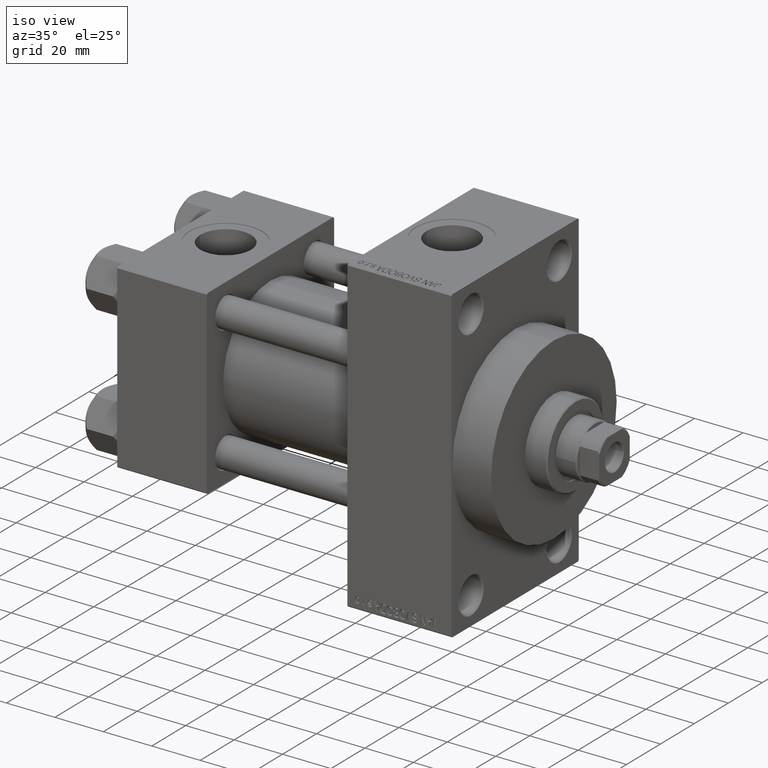
[diagram: clean part render]
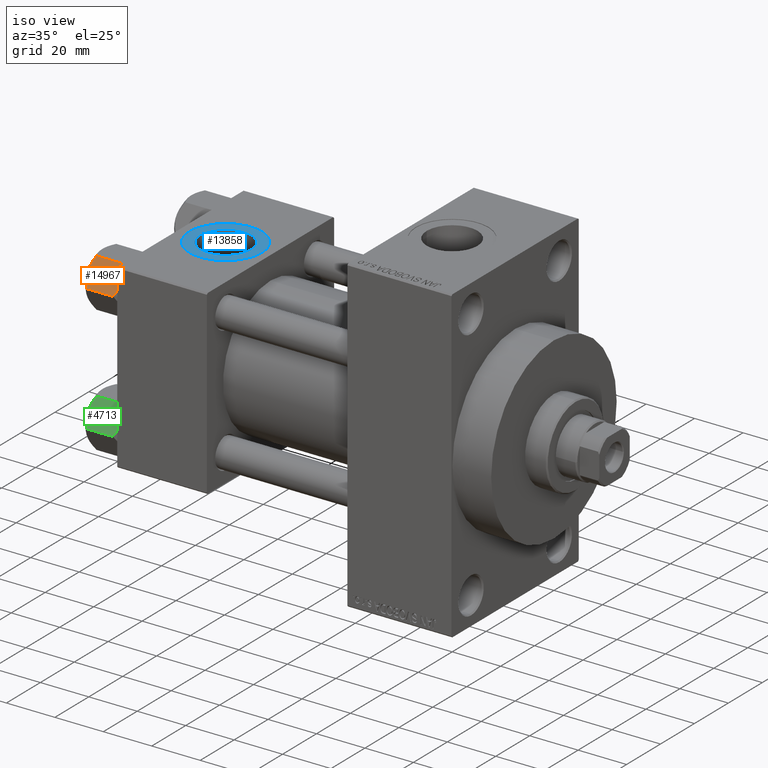
[diagram: same view with three faces highlighted in distinct colors, each labeled with its STEP entity id]
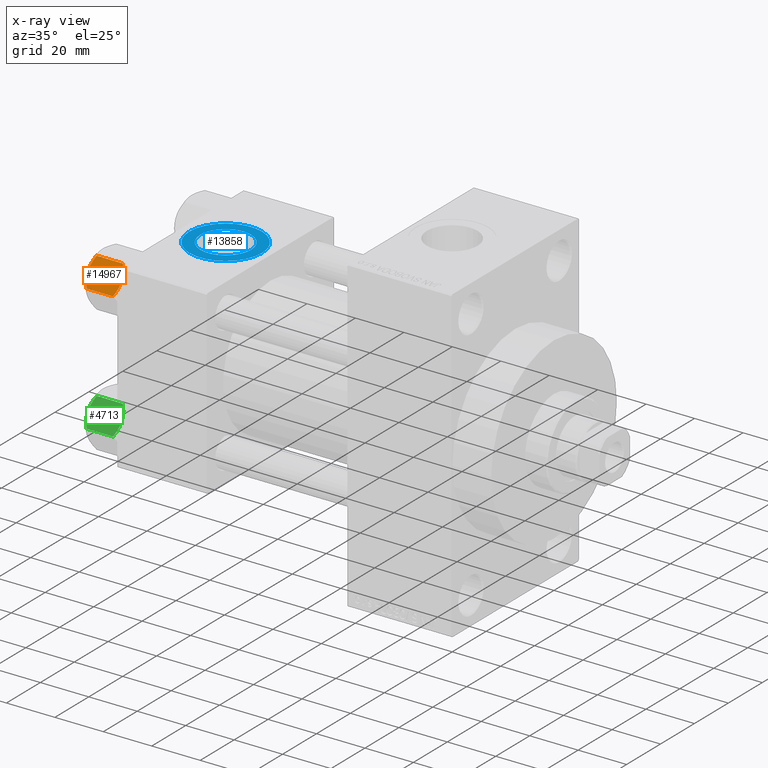
[diagram: x-ray of the same camera — body ghosted, the three highlighted faces saturated]
A machine part, iso view with three faces highlighted in distinct colors.
The next image is the same camera in x-ray (body ghosted, the three faces saturated) — at least one of them is partly hidden behind the body in this view.
Their STEP definitions:

[orange] entity #14967 — the highlighted planar face has unit normal (0, 0.866, -0.5).
#57 = EDGE_LOOP ( 'NONE', ( #19567, #43581, #9021, #15648, #45360, #9784 ) ) ;
#251 = CARTESIAN_POINT ( 'NONE',  ( -11.61999999999999922, 6.270720075510426383E-15, -12.44321519197518988 ) ) ;
#633 = VERTEX_POINT ( 'NONE', #37097 ) ;
#848 = CARTESIAN_POINT ( 'NONE',  ( -11.61999999999999922, 6.270720075409452187E-15, -1.556784808024810562 ) ) ;
#913 = CARTESIAN_POINT ( 'NONE',  ( -11.61999999999999922, 6.270720075409452187E-15, -1.556784808024810562 ) ) ;
#1164 = CARTESIAN_POINT ( 'NONE',  ( -7.700834831386346835, -6.788193195293090731, -13.80960203119266438 ) ) ;
#2152 = AXIS2_PLACEMENT_3D ( 'NONE', #8413, #23383, #34112 ) ;
#2275 = CARTESIAN_POINT ( 'NONE',  ( -8.715000000000006963, -5.031607595987586556, 0.000000000000000000 ) ) ;
#3567 = EDGE_CURVE ( 'NONE', #633, #10531, #17871, .T. ) ;
#4439 = PLANE ( 'NONE',  #2152 ) ;
#4832 = CARTESIAN_POINT ( 'NONE',  ( -8.715000000000006963, -5.031607595987586556, 0.000000000000000000 ) ) ;
#5022 = CARTESIAN_POINT ( 'NONE',  ( -11.61999999999999922, 6.270720075510426383E-15, -12.44321519197518988 ) ) ;
#5642 = CARTESIAN_POINT ( 'NONE',  ( -8.715000000000006963, -5.031607595987586556, -14.00000000000000000 ) ) ;
#6945 = CARTESIAN_POINT ( 'NONE',  ( -5.810000000000000497, -10.06321519197517844, -12.44321519197518633 ) ) ;
#7326 = EDGE_CURVE ( 'NONE', #45442, #10340, #32064, .T. ) ;
#8413 = CARTESIAN_POINT ( 'NONE',  ( -5.810000000000000497, -10.06321519197517844, -14.00000000000000000 ) ) ;
#8564 = CARTESIAN_POINT ( 'NONE',  ( -8.969430103550386946, -4.590921729663310025, 6.662949392646161370E-15 ) ) ;
#8921 = LINE ( 'NONE', #13404, #17439 ) ;
#9021 = ORIENTED_EDGE ( 'NONE', *, *, #3567, .F. ) ;
#9784 = ORIENTED_EDGE ( 'NONE', *, *, #7326, .F. ) ;
#10340 = VERTEX_POINT ( 'NONE', #5022 ) ;
#10531 = VERTEX_POINT ( 'NONE', #25452 ) ;
#11217 = CARTESIAN_POINT ( 'NONE',  ( -10.69662495661650148, -1.599332489581326344, -13.28854452935655317 ) ) ;
#12303 = CARTESIAN_POINT ( 'NONE',  ( -9.974696630283190757, -2.849749030213787115, -0.3002673809867329457 ) ) ;
#12511 = CARTESIAN_POINT ( 'NONE',  ( -6.733375043383495573, -8.463882702393842550, -0.7114554706434480513 ) ) ;
#13404 = CARTESIAN_POINT ( 'NONE',  ( -5.810000000000000497, -10.06321519197517844, -14.00000000000000000 ) ) ;
#14961 = CARTESIAN_POINT ( 'NONE',  ( -8.715000000000006963, -5.031607595987586556, -14.00000000000000000 ) ) ;
#14967 = ADVANCED_FACE ( 'NONE', ( #30617 ), #4439, .F. ) ;
#15648 = ORIENTED_EDGE ( 'NONE', *, *, #24134, .F. ) ;
#16010 = LINE ( 'NONE', #39422, #41985 ) ;
#16615 = CARTESIAN_POINT ( 'NONE',  ( -7.455303369716809847, -7.213466161761383333, -13.69973261901326644 ) ) ;
#17439 = VECTOR ( 'NONE', #39825, 1000.000000000000000 ) ;
#17471 = CARTESIAN_POINT ( 'NONE',  ( -8.209704053696567527, -5.906805847843720869, 6.159623592433269699E-15 ) ) ;
#17871 = B_SPLINE_CURVE_WITH_KNOTS ( 'NONE', 3,
 ( #2275, #17471, #20250, #12511, #39427, #35452 ),
 .UNSPECIFIED., .F., .F.,
 ( 4, 2, 4 ),
 ( 0.006022845781655586372, 0.009013049135303635023, 0.01200325248895168367 ),
 .UNSPECIFIED. ) ;
#19446 = CARTESIAN_POINT ( 'NONE',  ( -9.716999946243698005, -3.296092779912219939, -13.84547602999602667 ) ) ;
#19567 = ORIENTED_EDGE ( 'NONE', *, *, #45413, .F. ) ;
#20250 = CARTESIAN_POINT ( 'NONE',  ( -7.713000053756304375, -6.767122412062951398, -0.1545239700039803266 ) ) ;
#20368 = CARTESIAN_POINT ( 'NONE',  ( -8.715000000000006963, -5.031607595987586556, -14.00000000000000000 ) ) ;
#21423 = B_SPLINE_CURVE_WITH_KNOTS ( 'NONE', 3,
 ( #27838, #46531, #39293, #16615, #1164, #35810, #42788, #5642 ),
 .UNSPECIFIED., .F., .F.,
 ( 4, 2, 2, 4 ),
 ( 2.544312114906334931E-07, 0.003011550106433543393, 0.004517197944044570521, 0.006022845781655596781 ),
 .UNSPECIFIED. ) ;
#23383 = DIRECTION ( 'NONE',  ( 0.8660254037844390407, 0.4999999999999995004, 0.000000000000000000 ) ) ;
#23449 = EDGE_CURVE ( 'NONE', #25885, #10531, #8921, .T. ) ;
#23537 = CARTESIAN_POINT ( 'NONE',  ( -11.16445427487471420, -0.7890283410877914072, -1.101239082899528432 ) ) ;
#24134 = EDGE_CURVE ( 'NONE', #25809, #633, #26479, .T. ) ;
#25452 = CARTESIAN_POINT ( 'NONE',  ( -5.810000000000000497, -10.06321519197517844, -1.556784808024813893 ) ) ;
#25809 = VERTEX_POINT ( 'NONE', #913 ) ;
#25885 = VERTEX_POINT ( 'NONE', #6945 ) ;
#26440 = CARTESIAN_POINT ( 'NONE',  ( -9.220295946303428636, -4.156409344131446026, -14.00000000000000711 ) ) ;
#26479 = B_SPLINE_CURVE_WITH_KNOTS ( 'NONE', 3,
 ( #848, #23537, #31260, #12303, #27522, #42714, #8564, #4832 ),
 .UNSPECIFIED., .F., .F.,
 ( 4, 2, 2, 4 ),
 ( 2.544312114893457383E-07, 0.003011550106433538623, 0.004517197944044561847, 0.006022845781655586372 ),
 .UNSPECIFIED. ) ;
#27522 = CARTESIAN_POINT ( 'NONE',  ( -9.729165168613654657, -3.275021996682076608, -0.1903979688073365595 ) ) ;
#27726 = DIRECTION ( 'NONE',  ( -0.000000000000000000, -0.000000000000000000, 1.000000000000000000 ) ) ;
#27838 = CARTESIAN_POINT ( 'NONE',  ( -5.810000000000000497, -10.06321519197517844, -12.44321519197518633 ) ) ;
#30617 = FACE_OUTER_BOUND ( 'NONE', #57, .T. ) ;
#31260 = CARTESIAN_POINT ( 'NONE',  ( -10.69859855102500923, -1.595914123792257611, -0.7141438259524607313 ) ) ;
#32064 = B_SPLINE_CURVE_WITH_KNOTS ( 'NONE', 3,
 ( #14961, #26440, #19446, #11217, #45620, #251 ),
 .UNSPECIFIED., .F., .F.,
 ( 4, 2, 4 ),
 ( 0.006022845781655596781, 0.009013049135303641962, 0.01200325248895168714 ),
 .UNSPECIFIED. ) ;
#34112 = DIRECTION ( 'NONE',  ( -0.4999999999999994449, 0.8660254037844389297, 0.000000000000000000 ) ) ;
#35452 = CARTESIAN_POINT ( 'NONE',  ( -5.810000000000000497, -10.06321519197517844, -1.556784808024813893 ) ) ;
#35810 = CARTESIAN_POINT ( 'NONE',  ( -8.202333004087902779, -5.919572880271047666, -13.96005881939309745 ) ) ;
#37097 = CARTESIAN_POINT ( 'NONE',  ( -8.715000000000006963, -5.031607595987586556, 0.000000000000000000 ) ) ;
#39293 = CARTESIAN_POINT ( 'NONE',  ( -6.731401448974989599, -8.467301068182909063, -13.28585617404753272 ) ) ;
#39422 = CARTESIAN_POINT ( 'NONE',  ( -11.61999999999999922, 6.288644352490894150E-15, -14.00000000000000000 ) ) ;
#39427 = CARTESIAN_POINT ( 'NONE',  ( -6.265018354709776638, -9.275100283241451748, -1.101766453314952043 ) ) ;
#39825 = DIRECTION ( 'NONE',  ( -0.000000000000000000, -0.000000000000000000, 1.000000000000000000 ) ) ;
#40199 = EDGE_CURVE ( 'NONE', #10340, #25809, #16010, .T. ) ;
#41985 = VECTOR ( 'NONE', #27726, 1000.000000000000000 ) ;
#42714 = CARTESIAN_POINT ( 'NONE',  ( -9.227666995912100489, -4.143642311704120118, -0.03994118060690279165 ) ) ;
#42788 = CARTESIAN_POINT ( 'NONE',  ( -8.460569896449619876, -5.472293462311856871, -14.00000000000000888 ) ) ;
#43581 = ORIENTED_EDGE ( 'NONE', *, *, #23449, .T. ) ;
#45360 = ORIENTED_EDGE ( 'NONE', *, *, #40199, .F. ) ;
#45413 = EDGE_CURVE ( 'NONE', #25885, #45442, #21423, .T. ) ;
#45442 = VERTEX_POINT ( 'NONE', #20368 ) ;
#45620 = CARTESIAN_POINT ( 'NONE',  ( -11.16498164529022219, -0.7881149087337223635, -12.89823354668505040 ) ) ;
#46531 = CARTESIAN_POINT ( 'NONE',  ( -6.265545725125283738, -9.274186850887380373, -12.89876091710046779 ) ) ;

[blue] entity #13858 — the highlighted planar face has unit normal (0, 0, 1).
#83 = CARTESIAN_POINT ( 'NONE',  ( 18.50000000000000000, -5.204170427930421283E-15, 37.29999999999999716 ) ) ;
#2344 = DIRECTION ( 'NONE',  ( 1.000000000000000000, 0.000000000000000000, 0.000000000000000000 ) ) ;
#2635 = EDGE_LOOP ( 'NONE', ( #8825, #5578 ) ) ;
#3847 = AXIS2_PLACEMENT_3D ( 'NONE', #83, #18523, #4078 ) ;
#4078 = DIRECTION ( 'NONE',  ( 1.000000000000000000, 0.000000000000000000, 0.000000000000000000 ) ) ;
#4519 = DIRECTION ( 'NONE',  ( 1.000000000000000000, 0.000000000000000000, 0.000000000000000000 ) ) ;
#4776 = VERTEX_POINT ( 'NONE', #39566 ) ;
#5532 = DIRECTION ( 'NONE',  ( 1.000000000000000000, 0.000000000000000000, 0.000000000000000000 ) ) ;
#5578 = ORIENTED_EDGE ( 'NONE', *, *, #12237, .T. ) ;
#5839 = EDGE_LOOP ( 'NONE', ( #41383, #46500 ) ) ;
#6871 = EDGE_CURVE ( 'NONE', #47991, #19609, #27465, .T. ) ;
#6929 = DIRECTION ( 'NONE',  ( 0.000000000000000000, 0.000000000000000000, 1.000000000000000000 ) ) ;
#8825 = ORIENTED_EDGE ( 'NONE', *, *, #35102, .T. ) ;
#9557 = CARTESIAN_POINT ( 'NONE',  ( 18.50000000000000000, -5.204170427930421283E-15, 37.29999999999999716 ) ) ;
#10882 = DIRECTION ( 'NONE',  ( 0.000000000000000000, 0.000000000000000000, 1.000000000000000000 ) ) ;
#12237 = EDGE_CURVE ( 'NONE', #40033, #4776, #32306, .T. ) ;
#13736 = CARTESIAN_POINT ( 'NONE',  ( 18.50000000000000000, -5.204170427930421283E-15, 37.29999999999999716 ) ) ;
#13858 = ADVANCED_FACE ( 'NONE', ( #34823, #15621 ), #22607, .T. ) ;
#14626 = CARTESIAN_POINT ( 'NONE',  ( 18.50000000000000000, -5.204170427930421283E-15, 37.29999999999999716 ) ) ;
#15621 = FACE_OUTER_BOUND ( 'NONE', #2635, .T. ) ;
#18523 = DIRECTION ( 'NONE',  ( 0.000000000000000000, 0.000000000000000000, 1.000000000000000000 ) ) ;
#18868 = DIRECTION ( 'NONE',  ( 1.000000000000000000, 0.000000000000000000, -0.000000000000000000 ) ) ;
#19609 = VERTEX_POINT ( 'NONE', #23877 ) ;
#20345 = CIRCLE ( 'NONE', #36232, 15.00000000000000355 ) ;
#21295 = DIRECTION ( 'NONE',  ( 0.000000000000000000, 0.000000000000000000, 1.000000000000000000 ) ) ;
#22607 = PLANE ( 'NONE',  #41106 ) ;
#23877 = CARTESIAN_POINT ( 'NONE',  ( 28.98000000000000043, -5.204170427930421283E-15, 37.29999999999999716 ) ) ;
#26963 = CARTESIAN_POINT ( 'NONE',  ( 18.50000000000000000, -5.204170427930421283E-15, 37.29999999999999716 ) ) ;
#27465 = CIRCLE ( 'NONE', #29842, 10.48000000000000043 ) ;
#29842 = AXIS2_PLACEMENT_3D ( 'NONE', #9557, #21295, #2344 ) ;
#32306 = CIRCLE ( 'NONE', #34695, 15.00000000000000355 ) ;
#34695 = AXIS2_PLACEMENT_3D ( 'NONE', #26963, #38660, #4519 ) ;
#34823 = FACE_BOUND ( 'NONE', #5839, .T. ) ;
#35102 = EDGE_CURVE ( 'NONE', #4776, #40033, #20345, .T. ) ;
#36232 = AXIS2_PLACEMENT_3D ( 'NONE', #13736, #6929, #5532 ) ;
#38660 = DIRECTION ( 'NONE',  ( 0.000000000000000000, 0.000000000000000000, 1.000000000000000000 ) ) ;
#38870 = CARTESIAN_POINT ( 'NONE',  ( 3.499999999999997780, -3.367200229209391300E-15, 37.29999999999999716 ) ) ;
#39566 = CARTESIAN_POINT ( 'NONE',  ( 33.50000000000000000, -5.204170427930421283E-15, 37.29999999999999716 ) ) ;
#40033 = VERTEX_POINT ( 'NONE', #38870 ) ;
#41106 = AXIS2_PLACEMENT_3D ( 'NONE', #14626, #10882, #18868 ) ;
#41383 = ORIENTED_EDGE ( 'NONE', *, *, #45594, .F. ) ;
#43317 = CARTESIAN_POINT ( 'NONE',  ( 8.019999999999999574, -3.920740582423995006E-15, 37.29999999999999716 ) ) ;
#43612 = CIRCLE ( 'NONE', #3847, 10.48000000000000043 ) ;
#45594 = EDGE_CURVE ( 'NONE', #19609, #47991, #43612, .T. ) ;
#46500 = ORIENTED_EDGE ( 'NONE', *, *, #6871, .F. ) ;
#47991 = VERTEX_POINT ( 'NONE', #43317 ) ;

[green] entity #4713 — the highlighted planar face has unit normal (-0, 0.866, -0.5).
#780 = EDGE_CURVE ( 'NONE', #26745, #41247, #32774, .T. ) ;
#987 = ORIENTED_EDGE ( 'NONE', *, *, #2566, .T. ) ;
#1022 = VECTOR ( 'NONE', #2919, 1000.000000000000000 ) ;
#1103 = VERTEX_POINT ( 'NONE', #17000 ) ;
#1324 = CARTESIAN_POINT ( 'NONE',  ( 5.810000000000000497, 10.06321519197518022, -1.556784808024815892 ) ) ;
#2566 = EDGE_CURVE ( 'NONE', #5425, #48538, #40554, .T. ) ;
#2919 = DIRECTION ( 'NONE',  ( -0.000000000000000000, -0.000000000000000000, 1.000000000000000000 ) ) ;
#3858 = CARTESIAN_POINT ( 'NONE',  ( 5.810000000000000497, 10.06321519197518022, -12.44321519197518455 ) ) ;
#4686 = FACE_OUTER_BOUND ( 'NONE', #24424, .T. ) ;
#4713 = ADVANCED_FACE ( 'NONE', ( #4686 ), #23390, .F. ) ;
#4872 = CARTESIAN_POINT ( 'NONE',  ( 10.69859855102501278, 1.595914123792262718, -0.7141438259524649501 ) ) ;
#5152 = ORIENTED_EDGE ( 'NONE', *, *, #24838, .F. ) ;
#5344 = CARTESIAN_POINT ( 'NONE',  ( 5.810000000000000497, 10.06321519197518022, -1.556784808024815892 ) ) ;
#5425 = VERTEX_POINT ( 'NONE', #16770 ) ;
#6585 = B_SPLINE_CURVE_WITH_KNOTS ( 'NONE', 3,
 ( #11423, #8430, #23156, #31368, #8185, #41834 ),
 .UNSPECIFIED., .F., .F.,
 ( 4, 2, 4 ),
 ( 0.006022845781655592444, 0.009013049135303636758, 0.01200325248895168194 ),
 .UNSPECIFIED. ) ;
#7583 = CARTESIAN_POINT ( 'NONE',  ( 8.460569896449618099, 5.472293462311861312, -14.00000000000000000 ) ) ;
#7648 = EDGE_CURVE ( 'NONE', #41247, #42105, #49267, .T. ) ;
#8140 = VECTOR ( 'NONE', #47230, 1000.000000000000000 ) ;
#8185 = CARTESIAN_POINT ( 'NONE',  ( 11.16498164529022574, 0.7881149087337292469, -12.89823354668504862 ) ) ;
#8430 = CARTESIAN_POINT ( 'NONE',  ( 9.220295946303432189, 4.156409344131451356, -14.00000000000000178 ) ) ;
#8605 = CARTESIAN_POINT ( 'NONE',  ( 8.715000000000005187, 5.031607595987590109, 0.000000000000000000 ) ) ;
#9525 = CARTESIAN_POINT ( 'NONE',  ( 8.209704053696576409, 5.906805847843727086, 3.430483436379916373E-15 ) ) ;
#11167 = CARTESIAN_POINT ( 'NONE',  ( 5.810000000000000497, 10.06321519197518022, -14.00000000000000000 ) ) ;
#11317 = CARTESIAN_POINT ( 'NONE',  ( 6.731401448974991375, 8.467301068182917945, -13.28585617404753627 ) ) ;
#11423 = CARTESIAN_POINT ( 'NONE',  ( 8.715000000000005187, 5.031607595987590109, -14.00000000000000000 ) ) ;
#11574 = CARTESIAN_POINT ( 'NONE',  ( 6.265545725125286403, 9.274186850887383926, -12.89876091710046957 ) ) ;
#13976 = ORIENTED_EDGE ( 'NONE', *, *, #27020, .F. ) ;
#14816 = B_SPLINE_CURVE_WITH_KNOTS ( 'NONE', 3,
 ( #43435, #9525, #39939, #20772, #24759, #1324 ),
 .UNSPECIFIED., .F., .F.,
 ( 4, 2, 4 ),
 ( 0.006022845781655588107, 0.009013049135303636758, 0.01200325248895168367 ),
 .UNSPECIFIED. ) ;
#14907 = CARTESIAN_POINT ( 'NONE',  ( 9.227666995912102266, 4.143642311704121894, -0.03994118060690670519 ) ) ;
#15065 = CARTESIAN_POINT ( 'NONE',  ( 8.202333004087901003, 5.919572880271053883, -13.96005881939309567 ) ) ;
#15160 = DIRECTION ( 'NONE',  ( -0.8660254037844387076, -0.4999999999999998335, 0.000000000000000000 ) ) ;
#16583 = EDGE_CURVE ( 'NONE', #42105, #48538, #14816, .T. ) ;
#16770 = CARTESIAN_POINT ( 'NONE',  ( 5.810000000000000497, 10.06321519197518022, -12.44321519197518455 ) ) ;
#17000 = CARTESIAN_POINT ( 'NONE',  ( 8.715000000000005187, 5.031607595987590109, -14.00000000000000000 ) ) ;
#18117 = CARTESIAN_POINT ( 'NONE',  ( 5.810000000000000497, 10.06321519197518022, -14.00000000000000000 ) ) ;
#19584 = CARTESIAN_POINT ( 'NONE',  ( 9.974696630283190757, 2.849749030213792000, -0.3002673809867367205 ) ) ;
#20772 = CARTESIAN_POINT ( 'NONE',  ( 6.733375043383499126, 8.463882702393844326, -0.7114554706434494946 ) ) ;
#22804 = CARTESIAN_POINT ( 'NONE',  ( 8.715000000000005187, 5.031607595987590109, -14.00000000000000000 ) ) ;
#23156 = CARTESIAN_POINT ( 'NONE',  ( 9.716999946243698005, 3.296092779912226156, -13.84547602999602134 ) ) ;
#23194 = CARTESIAN_POINT ( 'NONE',  ( 11.62000000000000099, -1.924525737834042474E-15, -1.556784808024813893 ) ) ;
#23390 = PLANE ( 'NONE',  #48871 ) ;
#24072 = CARTESIAN_POINT ( 'NONE',  ( 8.969430103550381617, 4.590921729663312689, 3.523657060577888622E-15 ) ) ;
#24213 = ORIENTED_EDGE ( 'NONE', *, *, #780, .F. ) ;
#24424 = EDGE_LOOP ( 'NONE', ( #5152, #987, #33901, #25216, #24213, #13976 ) ) ;
#24759 = CARTESIAN_POINT ( 'NONE',  ( 6.265018354709773973, 9.275100283241448196, -1.101766453314953154 ) ) ;
#24838 = EDGE_CURVE ( 'NONE', #5425, #1103, #26390, .T. ) ;
#25216 = ORIENTED_EDGE ( 'NONE', *, *, #7648, .F. ) ;
#25291 = CARTESIAN_POINT ( 'NONE',  ( 11.62000000000000099, -1.813166800014576593E-15, -14.00000000000000000 ) ) ;
#26390 = B_SPLINE_CURVE_WITH_KNOTS ( 'NONE', 3,
 ( #3858, #11574, #11317, #49210, #26793, #15065, #7583, #22804 ),
 .UNSPECIFIED., .F., .F.,
 ( 4, 2, 2, 4 ),
 ( 2.544312114902182352E-07, 0.003011550106433542526, 0.004517197944044567919, 0.006022845781655592444 ),
 .UNSPECIFIED. ) ;
#26745 = VERTEX_POINT ( 'NONE', #42143 ) ;
#26793 = CARTESIAN_POINT ( 'NONE',  ( 7.700834831386345058, 6.788193195293094284, -13.80960203119265906 ) ) ;
#27020 = EDGE_CURVE ( 'NONE', #1103, #26745, #6585, .T. ) ;
#27313 = CARTESIAN_POINT ( 'NONE',  ( 9.729165168613654657, 3.275021996682081493, -0.1903979688073405840 ) ) ;
#31368 = CARTESIAN_POINT ( 'NONE',  ( 10.69662495661650503, 1.599332489581333672, -13.28854452935655139 ) ) ;
#32774 = LINE ( 'NONE', #25291, #8140 ) ;
#33901 = ORIENTED_EDGE ( 'NONE', *, *, #16583, .F. ) ;
#34119 = DIRECTION ( 'NONE',  ( 0.4999999999999998335, -0.8660254037844387076, 0.000000000000000000 ) ) ;
#39939 = CARTESIAN_POINT ( 'NONE',  ( 7.713000053756307928, 6.767122412062951398, -0.1545239700039825748 ) ) ;
#40554 = LINE ( 'NONE', #18117, #1022 ) ;
#41247 = VERTEX_POINT ( 'NONE', #23194 ) ;
#41834 = CARTESIAN_POINT ( 'NONE',  ( 11.62000000000000099, -1.689012838886770227E-15, -12.44321519197518633 ) ) ;
#42105 = VERTEX_POINT ( 'NONE', #43849 ) ;
#42143 = CARTESIAN_POINT ( 'NONE',  ( 11.62000000000000099, -1.689012838886770227E-15, -12.44321519197518633 ) ) ;
#42754 = CARTESIAN_POINT ( 'NONE',  ( 11.16445427487472131, 0.7890283410877956261, -1.101239082899531985 ) ) ;
#43435 = CARTESIAN_POINT ( 'NONE',  ( 8.715000000000005187, 5.031607595987590109, 0.000000000000000000 ) ) ;
#43849 = CARTESIAN_POINT ( 'NONE',  ( 8.715000000000005187, 5.031607595987590109, 0.000000000000000000 ) ) ;
#45319 = CARTESIAN_POINT ( 'NONE',  ( 11.62000000000000099, -1.924525737834042474E-15, -1.556784808024813893 ) ) ;
#47230 = DIRECTION ( 'NONE',  ( -0.000000000000000000, -0.000000000000000000, 1.000000000000000000 ) ) ;
#48538 = VERTEX_POINT ( 'NONE', #5344 ) ;
#48871 = AXIS2_PLACEMENT_3D ( 'NONE', #11167, #15160, #34119 ) ;
#49210 = CARTESIAN_POINT ( 'NONE',  ( 7.455303369716807182, 7.213466161761384221, -13.69973261901325934 ) ) ;
#49267 = B_SPLINE_CURVE_WITH_KNOTS ( 'NONE', 3,
 ( #45319, #42754, #4872, #19584, #27313, #14907, #24072, #8605 ),
 .UNSPECIFIED., .F., .F.,
 ( 4, 2, 2, 4 ),
 ( 2.544312114903581015E-07, 0.003011550106433540791, 0.004517197944044564449, 0.006022845781655588107 ),
 .UNSPECIFIED. ) ;